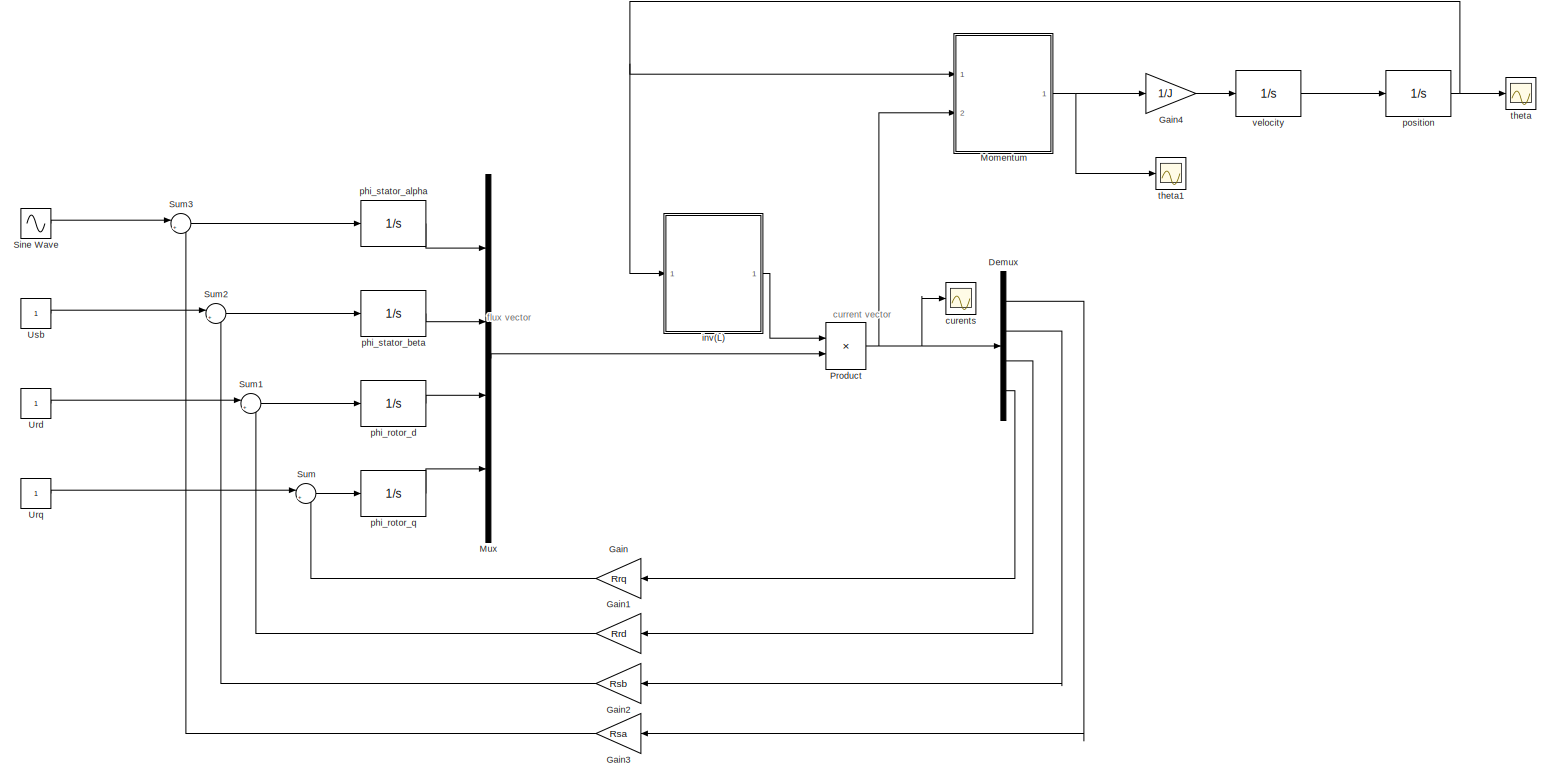
[diagram: root canvas - part 1/1, most of the canvas]
MODEL slx_2d60118481ee
KIND model
CONFIG AbsTol = auto
CONFIG EnableMultiTasking = off
CONFIG FixedStep = auto
CONFIG MaxStep = auto
CONFIG MinStep = auto
CONFIG RelTol = 1e-3
CONFIG SampleTimeConstraint = Unconstrained
CONFIG Solver = VariableStepAuto
CONFIG SolverName = VariableStepAuto
CONFIG StartTime = 0.0
CONFIG StopTime = 100
BLOCK [Demux] Demux
  DisplayOption = bar
  Ports = [1, 4]
BLOCK [Gain] Gain
  Gain = Rrq
  OutDataTypeStr = Inherit: Inherit via internal rule
  ParamDataTypeStr = Inherit: Inherit via internal rule
  SaturateOnIntegerOverflow = off
BLOCK [Gain] Gain1
  Gain = Rrd
  OutDataTypeStr = Inherit: Inherit via internal rule
  ParamDataTypeStr = Inherit: Inherit via internal rule
  SaturateOnIntegerOverflow = off
BLOCK [Gain] Gain2
  Gain = Rsb
  OutDataTypeStr = Inherit: Inherit via internal rule
  ParamDataTypeStr = Inherit: Inherit via internal rule
  SaturateOnIntegerOverflow = off
BLOCK [Gain] Gain3
  Gain = Rsa
  OutDataTypeStr = Inherit: Inherit via internal rule
  ParamDataTypeStr = Inherit: Inherit via internal rule
  SaturateOnIntegerOverflow = off
BLOCK [Gain] Gain4
  Gain = 1/J
  OutDataTypeStr = Inherit: Inherit via internal rule
  ParamDataTypeStr = Inherit: Inherit via internal rule
  SaturateOnIntegerOverflow = off
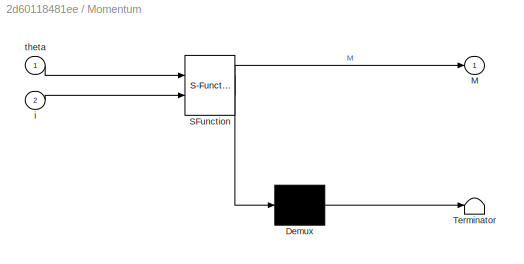
BLOCK [SubSystem] Momentum
  ErrorFcn = Stateflow.Translate.translate
  PermitHierarchicalResolution = ExplicitOnly
  Ports = [2, 1]
  RequestExecContextInheritance = off
  SFBlockType = MATLAB Function
  TreatAsAtomicUnit = on
  Variant = off
BLOCK [Demux] Momentum/ Demux 
  Outputs = 1
  Ports = [1, 1]
BLOCK [S-Function] Momentum/ SFunction 
  EnableBusSupport = on
  FunctionName = sf_sfun
  Parameters = Lm
  PortCounts = [2 2]
  Ports = [2, 2]
  SFcnIsStateOwnerBlock = off
  SFunctionDeploymentMode = off
  Tag = Stateflow S-Function two_phase_non_salient_electric_machine 1
BLOCK [Terminator] Momentum/ Terminator 
BLOCK [Outport] Momentum/M
  IconDisplay = Port number
BLOCK [Inport] Momentum/i
  IconDisplay = Port number
  Port = 2
BLOCK [Inport] Momentum/theta
  IconDisplay = Port number
BLOCK [Mux] Mux
  DisplayOption = bar
  Ports = [4, 1]
BLOCK [Product] Product
  InputSameDT = off
  Multiplication = Matrix(*)
  OutDataTypeStr = Inherit: Inherit via internal rule
  Ports = [2, 1]
  RndMeth = Floor
  SaturateOnIntegerOverflow = off
BLOCK [Sin] Sine Wave
  Ports = [0, 1]
  SampleTime = 0
BLOCK [Sum] Sum
  IconShape = round
  InputSameDT = off
  Inputs = |+-
  OutDataTypeStr = Inherit: Inherit via internal rule
  Ports = [2, 1]
  SaturateOnIntegerOverflow = off
BLOCK [Sum] Sum1
  IconShape = round
  InputSameDT = off
  Inputs = |+-
  OutDataTypeStr = Inherit: Inherit via internal rule
  Ports = [2, 1]
  SaturateOnIntegerOverflow = off
BLOCK [Sum] Sum2
  IconShape = round
  InputSameDT = off
  Inputs = |+-
  OutDataTypeStr = Inherit: Inherit via internal rule
  Ports = [2, 1]
  SaturateOnIntegerOverflow = off
BLOCK [Sum] Sum3
  IconShape = round
  InputSameDT = off
  Inputs = |+-
  OutDataTypeStr = Inherit: Inherit via internal rule
  Ports = [2, 1]
  SaturateOnIntegerOverflow = off
BLOCK [Constant] Urd
BLOCK [Constant] Urq
BLOCK [Constant] Usb
BLOCK [Scope] curents
  NumInputPorts = 1
  Ports = [1]
  ScopeSpecificationString = Simulink.scopes.TimeScopeBlockCfg('CurrentConfiguration', extmgr.ConfigurationSet(extmgr.Configuration('Core','General UI',true),extmgr.Configuration('Core','Source UI',true),extmgr.Configuration('Sources','WiredSimulink',true),extmgr.Configuration('Visuals','Time Domain',true,'SerializedDisplays',{struct('MinYLimReal','-0.09486','MaxYLimReal','0.13377','YLabelReal','','MinYLimMag','0.00000','MaxY...<+1365ch>
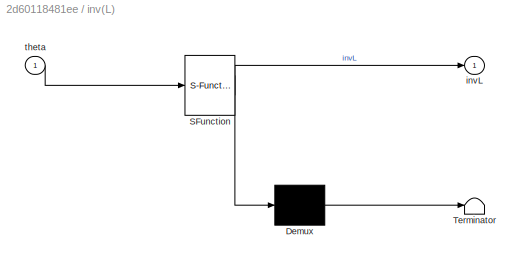
BLOCK [SubSystem] inv(L)
  ErrorFcn = Stateflow.Translate.translate
  PermitHierarchicalResolution = ExplicitOnly
  Ports = [1, 1]
  RequestExecContextInheritance = off
  SFBlockType = MATLAB Function
  TreatAsAtomicUnit = on
  Variant = off
BLOCK [Demux] inv(L)/ Demux 
  Outputs = 1
  Ports = [1, 1]
BLOCK [S-Function] inv(L)/ SFunction 
  EnableBusSupport = on
  FunctionName = sf_sfun
  Parameters = Lm,Lr,Ls
  PortCounts = [1 2]
  Ports = [1, 2]
  SFcnIsStateOwnerBlock = off
  SFunctionDeploymentMode = off
  Tag = Stateflow S-Function two_phase_non_salient_electric_machine 2
BLOCK [Terminator] inv(L)/ Terminator 
BLOCK [Outport] inv(L)/invL
  IconDisplay = Port number
BLOCK [Inport] inv(L)/theta
  IconDisplay = Port number
BLOCK [Integrator] phi_rotor_d
  Ports = [1, 1]
BLOCK [Integrator] phi_rotor_q
  Ports = [1, 1]
BLOCK [Integrator] phi_stator_alpha
  Ports = [1, 1]
BLOCK [Integrator] phi_stator_beta
  Ports = [1, 1]
BLOCK [Integrator] position
  Ports = [1, 1]
BLOCK [Scope] theta
  NumInputPorts = 1
  Ports = [1]
  ScopeSpecificationString = Simulink.scopes.TimeScopeBlockCfg('CurrentConfiguration', extmgr.ConfigurationSet(extmgr.Configuration('Core','General UI',true),extmgr.Configuration('Core','Source UI',true),extmgr.Configuration('Sources','WiredSimulink',true,'DataLoggingVariableName','ScopeData1'),extmgr.Configuration('Visuals','Time Domain',true,'SerializedDisplays',{struct('MinYLimReal','-0.18802','MaxYLimReal','1.69218','YLab...<+1423ch>
BLOCK [Scope] theta1
  NumInputPorts = 1
  Ports = [1]
  ScopeSpecificationString = Simulink.scopes.TimeScopeBlockCfg('CurrentConfiguration', extmgr.ConfigurationSet(extmgr.Configuration('Core','General UI',true),extmgr.Configuration('Core','Source UI',true),extmgr.Configuration('Sources','WiredSimulink',true,'DataLoggingVariableName','ScopeData1'),extmgr.Configuration('Visuals','Time Domain',true,'SerializedDisplays',{struct('MinYLimReal','-0.04333','MaxYLimReal','0.04179','YLab...<+1423ch>
BLOCK [Integrator] velocity
  Ports = [1, 1]
ANNOTATION (root): current vector
ANNOTATION (root): flux vector
LINE Demux:1 -> Gain3:1
LINE Demux:2 -> Gain2:1
LINE Demux:3 -> Gain1:1
LINE Demux:4 -> Gain:1
LINE Gain1:1 -> Sum1:2
LINE Gain2:1 -> Sum2:2
LINE Gain3:1 -> Sum3:2
LINE Gain4:1 -> velocity:1
LINE Gain:1 -> Sum:2
NET Momentum:1 -> Gain4:1, theta1:1
LINE Mux:1 -> Product:2
NET Product:1 -> Demux:1, Momentum:2, curents:1
LINE Sine Wave:1 -> Sum3:1
LINE Sum1:1 -> phi_rotor_d:1
LINE Sum2:1 -> phi_stator_beta:1
LINE Sum3:1 -> phi_stator_alpha:1
LINE Sum:1 -> phi_rotor_q:1
LINE Urd:1 -> Sum1:1
LINE Urq:1 -> Sum:1
LINE Usb:1 -> Sum2:1
LINE inv(L):1 -> Product:1
LINE phi_rotor_d:1 -> Mux:3
LINE phi_rotor_q:1 -> Mux:4
LINE phi_stator_alpha:1 -> Mux:1
LINE phi_stator_beta:1 -> Mux:2
NET position:1 -> Momentum:1, inv(L):1, theta:1
LINE velocity:1 -> position:1
note: NET lines group one-source signal fan-out (src -> all destinations, sorted); 1:1 wires keep LINE
CHART Momentum states=1 transitions=1
  STATE_LABEL 'eML_blk_kernel()'
  STATE_LABEL 'SCRIPT:\nfunction M = M_calc(theta, i, Lm)\ni_sa = i(1);\ni_sb = i(2);\ni_rd = i(3);\ni_rq = i(4);\nM =-i_sa*i_rd*Lm*sin(theta)...\n    -i_sa*i_rq*Lm*cos(theta)...\n    +i_sb*i_rd*Lm*cos(theta)...\n    -i_sb*i_rq*Lm*sin(theta);\n'
CHART inv(L) states=1 transitions=1
  STATE_LABEL 'eML_blk_kernel()'
  STATE_LABEL 'SCRIPT:\nfunction invL = invL_calc(theta, Ls, Lm, Lr)\n\nL = [Ls  0  Lm*cos(theta)  -Lm*sin(theta);\n     0   Ls   Lm*sin(theta)  Lm*cos(theta);\n     Lm*cos(theta) Lm*sin(theta)  Lr 0;\n     -Lm*sin(theta)  Lm*cos(theta)  0  Lr];\ninvL = inv(L);\n'
